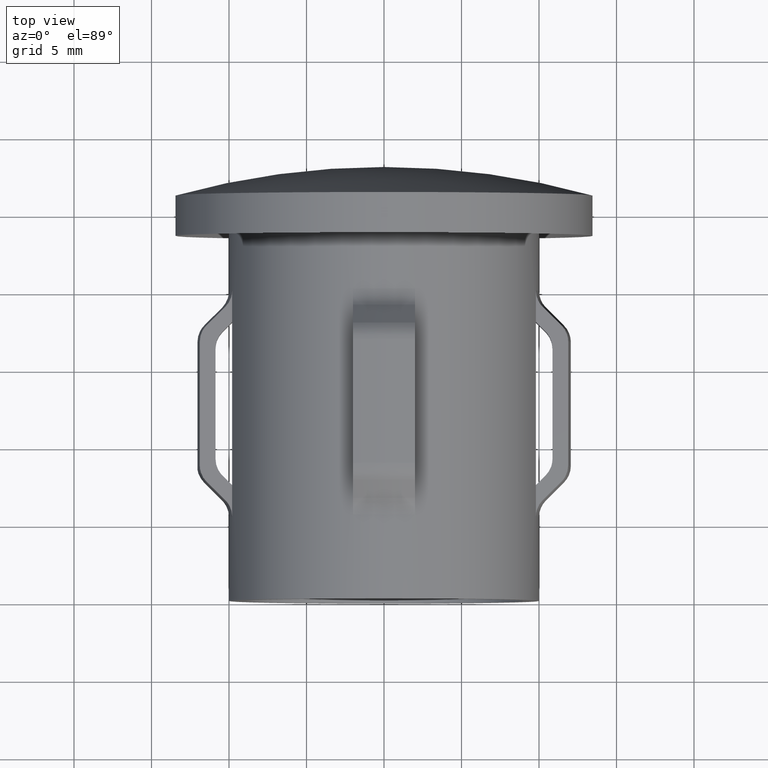
[diagram: clean part render]
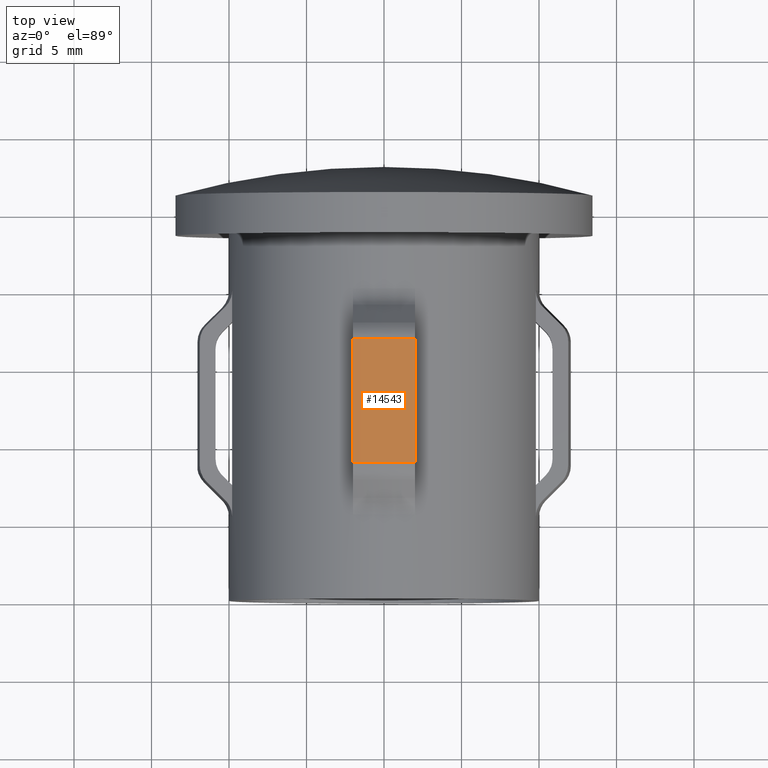
[diagram: same view with one face highlighted and labeled with its STEP entity id]
A machine part, top view. The second image highlights one B-rep face of the part: STEP entity #14543.
In plain terms, the highlighted cylindrical surface (partial cylindrical patch) has radius 12.05 mm, axis along (-0, -1, -0).
Its self-contained STEP definition (entity closure, byte-faithful):
#668 = CARTESIAN_POINT ( 'NONE',  ( -2.554140963682113618E-14, 16.70735931288075093, 0.000000000000000000 ) ) ;
#760 = CARTESIAN_POINT ( 'NONE',  ( -1.999999999999998668, 8.707359312880743829, 11.88286581595543367 ) ) ;
#903 = FACE_OUTER_BOUND ( 'NONE', #8432, .T. ) ;
#1150 = EDGE_CURVE ( 'NONE', #1384, #12400, #9694, .T. ) ;
#1295 = VECTOR ( 'NONE', #12439, 1000.000000000000000 ) ;
#1306 = CARTESIAN_POINT ( 'NONE',  ( 2.000000000000001776, 8.707359312880743829, 11.88286581595540703 ) ) ;
#1384 = VERTEX_POINT ( 'NONE', #1306 ) ;
#1793 = DIRECTION ( 'NONE',  ( 1.000000000000000000, -2.879209088758179370E-15, 0.000000000000000000 ) ) ;
#1831 = LINE ( 'NONE', #12937, #5881 ) ;
#2550 = DIRECTION ( 'NONE',  ( -2.904862207577519418E-15, -1.000000000000000000, -0.000000000000000000 ) ) ;
#2702 = CARTESIAN_POINT ( 'NONE',  ( -4.878030729744130099E-14, 8.707359312880747382, 0.000000000000000000 ) ) ;
#2821 = CYLINDRICAL_SURFACE ( 'NONE', #5616, 12.05000000000003979 ) ;
#3544 = ORIENTED_EDGE ( 'NONE', *, *, #1150, .F. ) ;
#4065 = CARTESIAN_POINT ( 'NONE',  ( 0.000000000000000000, 25.50000000000000000, 0.000000000000000000 ) ) ;
#4589 = CARTESIAN_POINT ( 'NONE',  ( 2.000000000000002220, 20.00000000000000000, 11.88286581595540703 ) ) ;
#4917 = DIRECTION ( 'NONE',  ( 1.000000000000000000, -2.879209088758173453E-15, 0.000000000000000000 ) ) ;
#5616 = AXIS2_PLACEMENT_3D ( 'NONE', #4065, #10981, #14388 ) ;
#5881 = VECTOR ( 'NONE', #13083, 1000.000000000000000 ) ;
#6414 = CIRCLE ( 'NONE', #13712, 12.05000000000002736 ) ;
#6657 = CARTESIAN_POINT ( 'NONE',  ( 2.000000000000002220, 16.70735931288071896, 11.88286581595540703 ) ) ;
#7114 = LINE ( 'NONE', #4589, #1295 ) ;
#8432 = EDGE_LOOP ( 'NONE', ( #10158, #14140, #3544, #13388 ) ) ;
#9319 = EDGE_CURVE ( 'NONE', #13334, #1384, #7114, .T. ) ;
#9694 = CIRCLE ( 'NONE', #12757, 12.05000000000005222 ) ;
#10101 = EDGE_CURVE ( 'NONE', #13226, #12400, #1831, .T. ) ;
#10158 = ORIENTED_EDGE ( 'NONE', *, *, #10889, .T. ) ;
#10889 = EDGE_CURVE ( 'NONE', #13334, #13226, #6414, .T. ) ;
#10981 = DIRECTION ( 'NONE',  ( -2.904862207577519418E-15, -1.000000000000000000, -0.000000000000000000 ) ) ;
#12400 = VERTEX_POINT ( 'NONE', #760 ) ;
#12439 = DIRECTION ( 'NONE',  ( -2.449293598294745364E-17, -1.000000000000000000, -0.000000000000000000 ) ) ;
#12757 = AXIS2_PLACEMENT_3D ( 'NONE', #2702, #2550, #4917 ) ;
#12805 = DIRECTION ( 'NONE',  ( -2.904862207577519418E-15, -1.000000000000000000, -0.000000000000000000 ) ) ;
#12937 = CARTESIAN_POINT ( 'NONE',  ( -1.999999999999998224, 20.00000000000000000, 11.88286581595543367 ) ) ;
#12964 = CARTESIAN_POINT ( 'NONE',  ( -1.999999999999998224, 16.70735931288071896, 11.88286581595543367 ) ) ;
#13083 = DIRECTION ( 'NONE',  ( -2.449293598294745364E-17, -1.000000000000000000, -0.000000000000000000 ) ) ;
#13226 = VERTEX_POINT ( 'NONE', #12964 ) ;
#13334 = VERTEX_POINT ( 'NONE', #6657 ) ;
#13388 = ORIENTED_EDGE ( 'NONE', *, *, #9319, .F. ) ;
#13712 = AXIS2_PLACEMENT_3D ( 'NONE', #668, #12805, #1793 ) ;
#14140 = ORIENTED_EDGE ( 'NONE', *, *, #10101, .T. ) ;
#14388 = DIRECTION ( 'NONE',  ( 1.000000000000000000, -2.879209088758176609E-15, 0.000000000000000000 ) ) ;
#14543 = ADVANCED_FACE ( 'NONE', ( #903 ), #2821, .T. ) ;